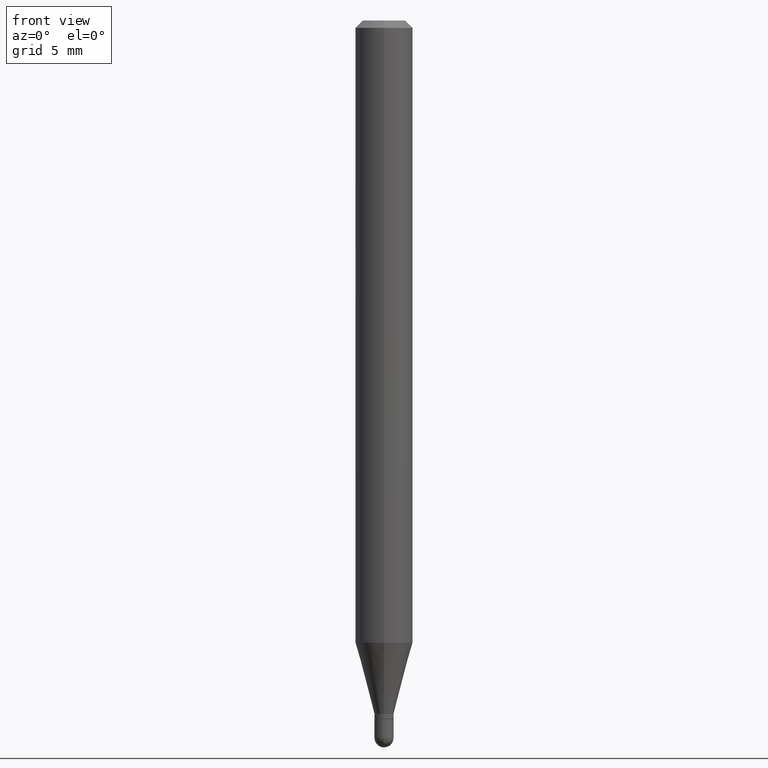
[diagram: clean part render]
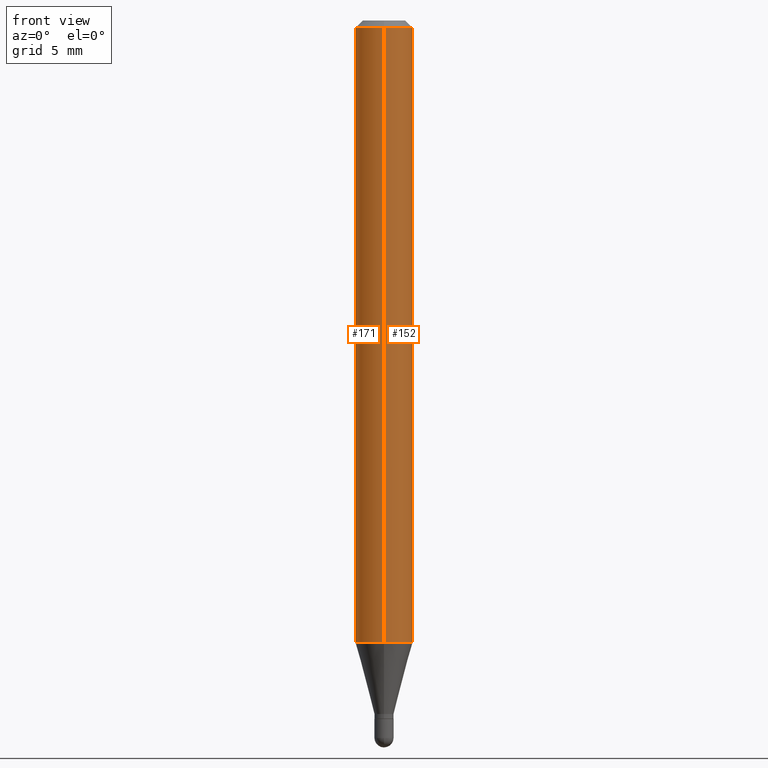
[diagram: same view with one multi-face feature highlighted, each face labeled with its STEP entity id]
A machine part, front view. The highlighted faces form ONE feature: a constant-radius fillet chain: 2 tangent blend faces with common blend radius 1.4999 mm. The faces share edges in the B-rep.
Their STEP definitions:
[1] entity #152 (Cylinder):
#4 = CARTESIAN_POINT ( 'NONE',  ( -4.123439461173739834E-16, -0.05904999999999999832, 2.061757182163971399E-16 ) ) ;
#15 = CARTESIAN_POINT ( 'NONE',  ( 4.195754854663702092E-16, 0.05904999999999550886, -1.280243800722165037 ) ) ;
#19 = VERTEX_POINT ( 'NONE', #98 ) ;
#29 = CYLINDRICAL_SURFACE ( 'NONE', #88, 0.05904999999999999832 ) ;
#88 = AXIS2_PLACEMENT_3D ( 'NONE', #427, #161, #158 ) ;
#97 = ORIENTED_EDGE ( 'NONE', *, *, #246, .T. ) ;
#98 = CARTESIAN_POINT ( 'NONE',  ( -4.123439461173428234E-16, -0.05905000000000448779, -1.280243800722164371 ) ) ;
#108 = CARTESIAN_POINT ( 'NONE',  ( 4.195754854663390985E-16, 0.05904999999999999832, -2.061757182163971399E-16 ) ) ;
#117 = FACE_OUTER_BOUND ( 'NONE', #496, .T. ) ;
#131 = EDGE_CURVE ( 'NONE', #345, #372, #360, .T. ) ;
#132 = DIRECTION ( 'NONE',  ( -6.982962677686265922E-15, -1.000000000000000000, 4.626330217890369336E-15 ) ) ;
#143 = AXIS2_PLACEMENT_3D ( 'NONE', #384, #418, #473 ) ;
#152 = ADVANCED_FACE ( 'NONE', ( #117 ), #29, .T. ) ;
#158 = DIRECTION ( 'NONE',  ( -6.982962677686265922E-15, -1.000000000000000000, 3.491544762343728097E-15 ) ) ;
#161 = DIRECTION ( 'NONE',  ( -2.445424517791391179E-29, 3.491544762343727703E-15, 1.000000000000000000 ) ) ;
#234 = DIRECTION ( 'NONE',  ( -2.445424517791391179E-29, 3.491544762343728097E-15, 1.000000000000000000 ) ) ;
#246 = EDGE_CURVE ( 'NONE', #406, #372, #512, .T. ) ;
#275 = CARTESIAN_POINT ( 'NONE',  ( 4.195754854663707023E-16, 0.05904999999999995669, -0.01500000000000025271 ) ) ;
#285 = CARTESIAN_POINT ( 'NONE',  ( 3.130739579036417639E-29, -4.470028536934500770E-15, -1.280243800722164815 ) ) ;
#318 = CIRCLE ( 'NONE', #404, 0.05904999999999999832 ) ;
#345 = VERTEX_POINT ( 'NONE', #483 ) ;
#347 = VECTOR ( 'NONE', #234, 39.37007874015748143 ) ;
#356 = EDGE_CURVE ( 'NONE', #19, #345, #397, .T. ) ;
#360 = CIRCLE ( 'NONE', #143, 0.05904999999999999832 ) ;
#364 = DIRECTION ( 'NONE',  ( -2.445424517791391179E-29, 3.491544762343727703E-15, 1.000000000000000000 ) ) ;
#372 = VERTEX_POINT ( 'NONE', #275 ) ;
#384 = CARTESIAN_POINT ( 'NONE',  ( 3.668136776687097612E-31, -5.237317143515606690E-17, -0.01500000000000004455 ) ) ;
#397 = LINE ( 'NONE', #4, #440 ) ;
#404 = AXIS2_PLACEMENT_3D ( 'NONE', #285, #364, #132 ) ;
#406 = VERTEX_POINT ( 'NONE', #15 ) ;
#418 = DIRECTION ( 'NONE',  ( -2.445424517791391179E-29, 3.491544762343727703E-15, 1.000000000000000000 ) ) ;
#421 = EDGE_CURVE ( 'NONE', #19, #406, #318, .T. ) ;
#427 = CARTESIAN_POINT ( 'NONE',  ( 0.000000000000000000, 0.000000000000000000, 0.000000000000000000 ) ) ;
#429 = ORIENTED_EDGE ( 'NONE', *, *, #356, .F. ) ;
#440 = VECTOR ( 'NONE', #478, 39.37007874015748143 ) ;
#451 = ORIENTED_EDGE ( 'NONE', *, *, #421, .T. ) ;
#459 = ORIENTED_EDGE ( 'NONE', *, *, #131, .F. ) ;
#473 = DIRECTION ( 'NONE',  ( -6.982962677686265922E-15, -1.000000000000000000, 3.505890868245046092E-15 ) ) ;
#478 = DIRECTION ( 'NONE',  ( -2.445424517791391179E-29, 3.491544762343728097E-15, 1.000000000000000000 ) ) ;
#483 = CARTESIAN_POINT ( 'NONE',  ( -4.123439461173736383E-16, -0.05905000000000005383, -0.01499999999999983812 ) ) ;
#496 = EDGE_LOOP ( 'NONE', ( #451, #97, #459, #429 ) ) ;
#512 = LINE ( 'NONE', #108, #347 ) ;
[2] entity #171 (Cylinder):
#4 = CARTESIAN_POINT ( 'NONE',  ( -4.123439461173739834E-16, -0.05904999999999999832, 2.061757182163971399E-16 ) ) ;
#8 = AXIS2_PLACEMENT_3D ( 'NONE', #236, #350, #308 ) ;
#15 = CARTESIAN_POINT ( 'NONE',  ( 4.195754854663702092E-16, 0.05904999999999550886, -1.280243800722165037 ) ) ;
#19 = VERTEX_POINT ( 'NONE', #98 ) ;
#27 = ORIENTED_EDGE ( 'NONE', *, *, #481, .F. ) ;
#57 = ORIENTED_EDGE ( 'NONE', *, *, #246, .F. ) ;
#60 = CIRCLE ( 'NONE', #79, 0.05904999999999999832 ) ;
#77 = CYLINDRICAL_SURFACE ( 'NONE', #8, 0.05904999999999999832 ) ;
#79 = AXIS2_PLACEMENT_3D ( 'NONE', #154, #424, #307 ) ;
#98 = CARTESIAN_POINT ( 'NONE',  ( -4.123439461173428234E-16, -0.05905000000000448779, -1.280243800722164371 ) ) ;
#104 = EDGE_CURVE ( 'NONE', #406, #19, #60, .T. ) ;
#108 = CARTESIAN_POINT ( 'NONE',  ( 4.195754854663390985E-16, 0.05904999999999999832, -2.061757182163971399E-16 ) ) ;
#154 = CARTESIAN_POINT ( 'NONE',  ( 3.130739579036417639E-29, -4.470028536934500770E-15, -1.280243800722164815 ) ) ;
#171 = ADVANCED_FACE ( 'NONE', ( #268 ), #77, .T. ) ;
#234 = DIRECTION ( 'NONE',  ( -2.445424517791391179E-29, 3.491544762343728097E-15, 1.000000000000000000 ) ) ;
#236 = CARTESIAN_POINT ( 'NONE',  ( 0.000000000000000000, 0.000000000000000000, 0.000000000000000000 ) ) ;
#246 = EDGE_CURVE ( 'NONE', #406, #372, #512, .T. ) ;
#268 = FACE_OUTER_BOUND ( 'NONE', #343, .T. ) ;
#275 = CARTESIAN_POINT ( 'NONE',  ( 4.195754854663707023E-16, 0.05904999999999995669, -0.01500000000000025271 ) ) ;
#278 = DIRECTION ( 'NONE',  ( -6.982962677686265922E-15, -1.000000000000000000, 3.505890868245046092E-15 ) ) ;
#298 = AXIS2_PLACEMENT_3D ( 'NONE', #396, #446, #278 ) ;
#307 = DIRECTION ( 'NONE',  ( -6.982962677686265922E-15, -1.000000000000000000, 4.626330217890369336E-15 ) ) ;
#308 = DIRECTION ( 'NONE',  ( -6.982962677686265922E-15, -1.000000000000000000, 3.491544762343728097E-15 ) ) ;
#325 = ORIENTED_EDGE ( 'NONE', *, *, #356, .T. ) ;
#343 = EDGE_LOOP ( 'NONE', ( #57, #348, #325, #27 ) ) ;
#345 = VERTEX_POINT ( 'NONE', #483 ) ;
#347 = VECTOR ( 'NONE', #234, 39.37007874015748143 ) ;
#348 = ORIENTED_EDGE ( 'NONE', *, *, #104, .T. ) ;
#350 = DIRECTION ( 'NONE',  ( -2.445424517791391179E-29, 3.491544762343727703E-15, 1.000000000000000000 ) ) ;
#356 = EDGE_CURVE ( 'NONE', #19, #345, #397, .T. ) ;
#372 = VERTEX_POINT ( 'NONE', #275 ) ;
#380 = CIRCLE ( 'NONE', #298, 0.05904999999999999832 ) ;
#396 = CARTESIAN_POINT ( 'NONE',  ( 3.668136776687097612E-31, -5.237317143515606690E-17, -0.01500000000000004455 ) ) ;
#397 = LINE ( 'NONE', #4, #440 ) ;
#406 = VERTEX_POINT ( 'NONE', #15 ) ;
#424 = DIRECTION ( 'NONE',  ( -2.445424517791391179E-29, 3.491544762343727703E-15, 1.000000000000000000 ) ) ;
#440 = VECTOR ( 'NONE', #478, 39.37007874015748143 ) ;
#446 = DIRECTION ( 'NONE',  ( -2.445424517791391179E-29, 3.491544762343727703E-15, 1.000000000000000000 ) ) ;
#478 = DIRECTION ( 'NONE',  ( -2.445424517791391179E-29, 3.491544762343728097E-15, 1.000000000000000000 ) ) ;
#481 = EDGE_CURVE ( 'NONE', #372, #345, #380, .T. ) ;
#483 = CARTESIAN_POINT ( 'NONE',  ( -4.123439461173736383E-16, -0.05905000000000005383, -0.01499999999999983812 ) ) ;
#512 = LINE ( 'NONE', #108, #347 ) ;